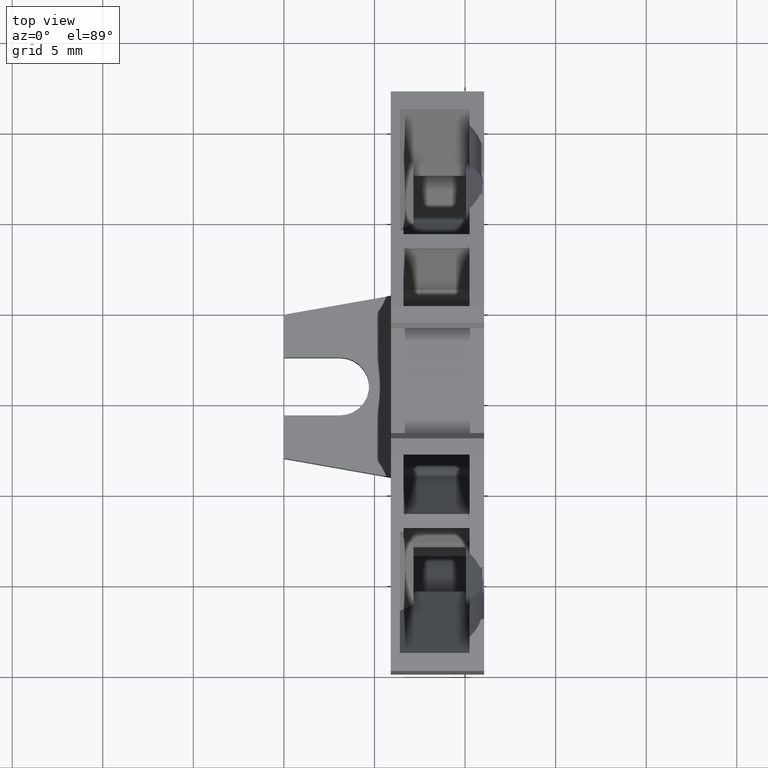
[diagram: clean part render]
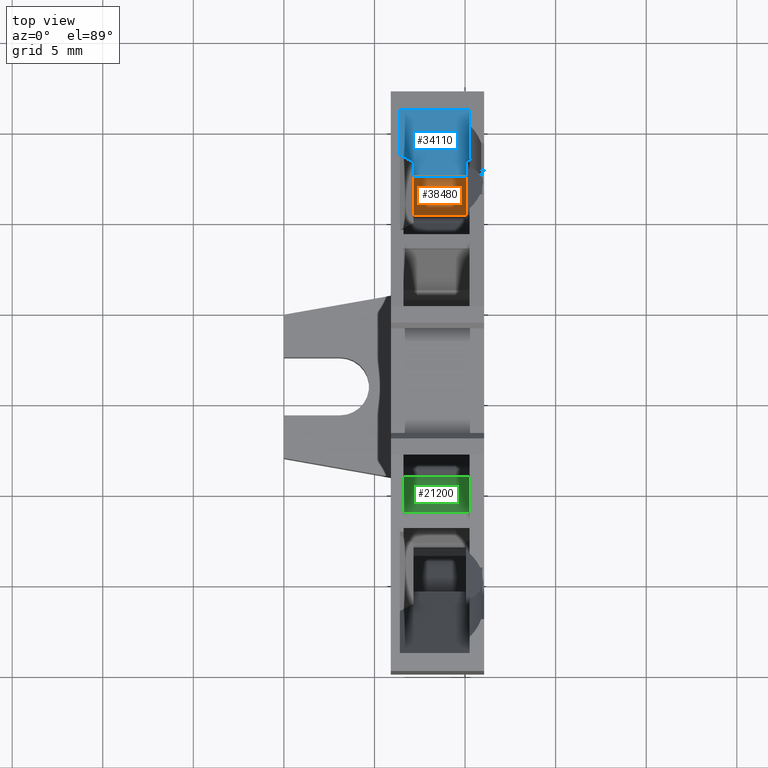
[diagram: same view with three faces highlighted in distinct colors, each labeled with its STEP entity id]
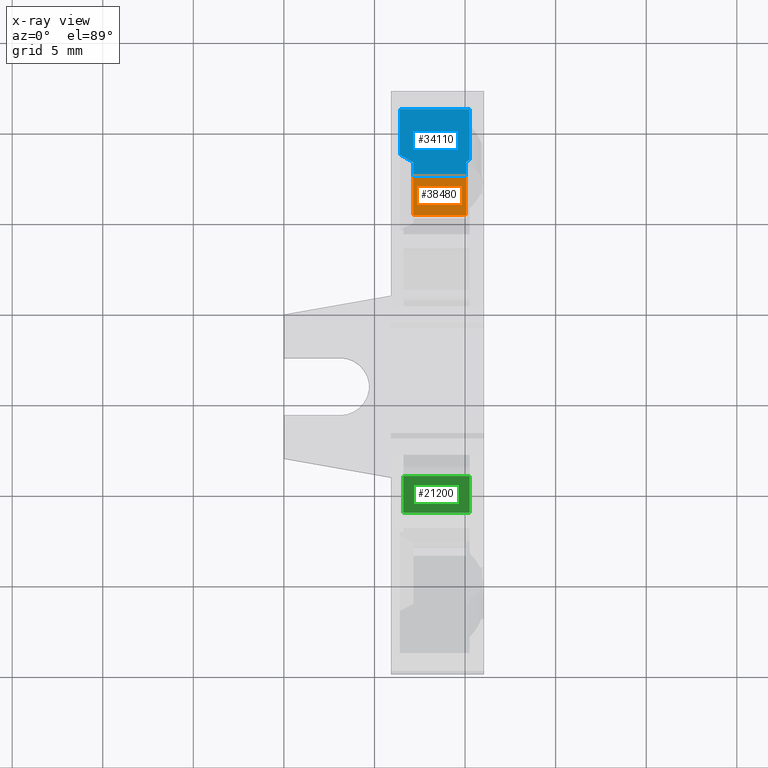
[diagram: x-ray of the same camera — body ghosted, the three highlighted faces saturated]
A machine part, top view with three faces highlighted in distinct colors.
The next image is the same camera in x-ray (body ghosted, the three faces saturated) — at least one of them is partly hidden behind the body in this view.
Their STEP definitions:

[orange] entity #38480 — the highlighted planar face has unit normal (0, -0.9063, 0.4226).
#37240=CARTESIAN_POINT('',(4.92265958745809,102.561787937568,
58.9500000000001));
#37250=VERTEX_POINT('',#37240);
#37280=CARTESIAN_POINT('',(20.0392281187325,115.246095016827,
58.9500000000002));
#37290=DIRECTION('',(-0.766044443118981,-0.642787609686536,
-5.66151225185954E-15));
#37300=VECTOR('',#37290,1.);
#37310=LINE('',#37280,#37300);
#37320=CARTESIAN_POINT('',(8.6707968779077,105.706848555586,
58.9500000000001));
#37330=VERTEX_POINT('',#37320);
#37340=EDGE_CURVE('',#37330,#37250,#37310,.T.);
#37970=CARTESIAN_POINT('',(8.67079687790773,105.706848555586,
56.0500000000001));
#37980=VERTEX_POINT('',#37970);
#38010=CARTESIAN_POINT('',(20.0392281187325,115.246095016827,
56.0500000000001));
#38020=DIRECTION('',(0.766044443118981,0.642787609686536,
5.66151225185954E-15));
#38030=VECTOR('',#38020,1.);
#38040=LINE('',#38010,#38030);
#38050=CARTESIAN_POINT('',(4.92265958745811,102.561787937568,56.05));
#38060=VERTEX_POINT('',#38050);
#38070=EDGE_CURVE('',#38060,#37980,#38040,.T.);
#38270=CARTESIAN_POINT('',(4.92265958745811,102.561787937568,56.05));
#38280=DIRECTION('',(-0.642787609686536,0.766044443118981,
-7.14358070359978E-15));
#38290=DIRECTION('',(-0.766044443118981,-0.642787609686536,
-5.63489273998844E-15));
#38300=AXIS2_PLACEMENT_3D('',#38270,#38280,#38290);
#38310=PLANE('',#38300);
#38320=CARTESIAN_POINT('',(8.67079687790769,105.706848555586,60.2));
#38330=DIRECTION('',(8.93727734127014E-15,-1.82601620162375E-15,-1.));
#38340=VECTOR('',#38330,1.);
#38350=LINE('',#38320,#38340);
#38360=EDGE_CURVE('',#37330,#37980,#38350,.T.);
#38370=ORIENTED_EDGE('',*,*,#38360,.T.);
#38380=ORIENTED_EDGE('',*,*,#37340,.F.);
#38390=CARTESIAN_POINT('',(4.92265958745811,102.561787937568,56.05));
#38400=DIRECTION('',(-8.9083834361094E-15,1.8502610667874E-15,1.));
#38410=VECTOR('',#38400,1.);
#38420=LINE('',#38390,#38410);
#38430=EDGE_CURVE('',#38060,#37250,#38420,.T.);
#38440=ORIENTED_EDGE('',*,*,#38430,.T.);
#38450=ORIENTED_EDGE('',*,*,#38070,.F.);
#38460=EDGE_LOOP('',(#38450,#38440,#38380,#38370));
#38470=FACE_OUTER_BOUND('',#38460,.T.);
#38480=ADVANCED_FACE('',(#38470),#38310,.T.);

[blue] entity #34110 — the highlighted planar face has unit normal (-0, 0.915, -0.4035).
#8500=CARTESIAN_POINT('',(-3.3303098592718,96.6881090813056,55.85));
#8510=VERTEX_POINT('',#8500);
#8540=CARTESIAN_POINT('',(-3.33030985927203,96.6881090813065,
1.19999999999999));
#8550=DIRECTION('',(-5.72931237573775E-15,4.40896777512382E-15,1.));
#8560=VECTOR('',#8550,1.);
#8570=LINE('',#8540,#8560);
#8580=CARTESIAN_POINT('',(-3.33030985927237,96.6881090813068,59.7));
#8590=VERTEX_POINT('',#8580);
#8600=EDGE_CURVE('',#8510,#8590,#8570,.T.);
#32500=CARTESIAN_POINT('',(1.80570796930594,100.817573436234,55.85));
#32510=VERTEX_POINT('',#32500);
#32540=CARTESIAN_POINT('',(30.7687890493702,124.104488497847,
55.8500000000003));
#32550=DIRECTION('',(-0.779337964931072,-0.62660381136496,
-5.80585337056626E-15));
#32560=VECTOR('',#32550,1.);
#32570=LINE('',#32540,#32560);
#32580=EDGE_CURVE('',#32510,#8510,#32570,.T.);
#33560=CARTESIAN_POINT('',(3.52774540917731,102.202127085212,59.5));
#33570=DIRECTION('',(0.626603811364457,-0.779337964931477,
7.02608494444828E-15));
#33580=DIRECTION('',(0.779337964931478,0.626603811364458,
5.8197053782752E-15));
#33590=AXIS2_PLACEMENT_3D('',#33560,#33570,#33580);
#33600=PLANE('',#33590);
#33610=CARTESIAN_POINT('',(19.9881696181566,115.436647935134,
56.0500000000001));
#33620=DIRECTION('',(0.779337964931477,0.626603811364457,
5.8246950053832E-15));
#33630=VECTOR('',#33620,1.);
#33640=LINE('',#33610,#33630);
#33650=CARTESIAN_POINT('',(2.12670908359392,101.075664958413,56.05));
#33660=VERTEX_POINT('',#33650);
#33670=CARTESIAN_POINT('',(3.50143310468914,102.180971449249,56.05));
#33680=VERTEX_POINT('',#33670);
#33690=EDGE_CURVE('',#33660,#33680,#33640,.T.);
#33700=ORIENTED_EDGE('',*,*,#33690,.F.);
#33710=CARTESIAN_POINT('',(3.50143310468914,102.180971449249,56.05));
#33720=DIRECTION('',(-8.9083834361094E-15,1.8502610667874E-15,1.));
#33730=VECTOR('',#33720,1.);
#33740=LINE('',#33710,#33730);
#33750=CARTESIAN_POINT('',(3.50143310468912,102.180971449249,58.95));
#33760=VERTEX_POINT('',#33750);
#33770=EDGE_CURVE('',#33680,#33760,#33740,.T.);
#33780=ORIENTED_EDGE('',*,*,#33770,.F.);
#33790=CARTESIAN_POINT('',(19.9881696181565,115.436647935134,
58.9500000000002));
#33800=DIRECTION('',(-0.779337964931477,-0.626603811364457,
-5.8246950053832E-15));
#33810=VECTOR('',#33800,1.);
#33820=LINE('',#33790,#33810);
#33830=CARTESIAN_POINT('',(2.12670908359203,101.075664958417,58.95));
#33840=VERTEX_POINT('',#33830);
#33850=EDGE_CURVE('',#33760,#33840,#33820,.T.);
#33860=ORIENTED_EDGE('',*,*,#33850,.F.);
#33870=CARTESIAN_POINT('',(29.6880590390013,123.235559260435,
33.1918184279166));
#33880=DIRECTION('',(-0.629955555217545,-0.506497270314236,
0.588741465853037));
#33890=VECTOR('',#33880,1.);
#33900=LINE('',#33870,#33890);
#33910=CARTESIAN_POINT('',(1.32420629787684,100.430436152959,59.7));
#33920=VERTEX_POINT('',#33910);
#33930=EDGE_CURVE('',#33840,#33920,#33900,.T.);
#33940=ORIENTED_EDGE('',*,*,#33930,.F.);
#33950=CARTESIAN_POINT('',(19.9881696181497,115.436647935152,59.7));
#33960=DIRECTION('',(-0.779337964931072,-0.626603811364961,
-1.9805735627175E-15));
#33970=VECTOR('',#33960,1.);
#33980=LINE('',#33950,#33970);
#33990=EDGE_CURVE('',#33920,#8590,#33980,.T.);
#34000=ORIENTED_EDGE('',*,*,#33990,.F.);
#34010=ORIENTED_EDGE('',*,*,#8600,.T.);
#34020=ORIENTED_EDGE('',*,*,#32580,.T.);
#34030=CARTESIAN_POINT('',(30.7687890493701,124.104488497848,
73.8954707420419));
#34040=DIRECTION('',(0.701061393815292,0.56366783235608,0.43679685995753
));
#34050=VECTOR('',#34040,1.);
#34060=LINE('',#34030,#34050);
#34070=EDGE_CURVE('',#32510,#33660,#34060,.T.);
#34080=ORIENTED_EDGE('',*,*,#34070,.F.);
#34090=EDGE_LOOP('',(#34080,#34020,#34010,#34000,#33940,#33860,#33780,
#33700));
#34100=FACE_OUTER_BOUND('',#34090,.T.);
#34110=ADVANCED_FACE('',(#34100),#33600,.F.);

[green] entity #21200 — the highlighted planar face has unit normal (0, -0.9418, -0.3361).
#12440=CARTESIAN_POINT('',(-8.77592645662877,118.285303567392,
55.8499999999999));
#12450=VERTEX_POINT('',#12440);
#12480=CARTESIAN_POINT('',(1.35003119794419E-13,117.573422095556,
55.8499999999999));
#12490=DIRECTION('',(-0.996726121110374,0.0808519603736914,
-5.20006836608108E-15));
#12500=VECTOR('',#12490,1.);
#12510=LINE('',#12480,#12500);
#12520=CARTESIAN_POINT('',(-2.47752193997825,117.774392554214,55.85));
#12530=VERTEX_POINT('',#12520);
#12540=EDGE_CURVE('',#12530,#12450,#12510,.T.);
#18950=CARTESIAN_POINT('',(-8.77592645662885,118.285303567392,
59.4999999999998));
#18960=VERTEX_POINT('',#18950);
#19590=CARTESIAN_POINT('',(-2.47752193997828,117.774392554214,
59.4999999999998));
#19600=VERTEX_POINT('',#19590);
#19630=CARTESIAN_POINT('',(1.17239551400417E-13,117.573422095556,
59.4999999999998));
#19640=DIRECTION('',(0.996726121110374,-0.0808519603736914,
5.20006836608108E-15));
#19650=VECTOR('',#19640,1.);
#19660=LINE('',#19630,#19650);
#19670=EDGE_CURVE('',#18960,#19600,#19660,.T.);
#20860=CARTESIAN_POINT('',(-2.47752193997788,117.774392554214,
-1.68087765928249E-13));
#20870=DIRECTION('',(4.98526388124856E-15,-2.8840892914068E-15,-1.));
#20880=VECTOR('',#20870,1.);
#20890=LINE('',#20860,#20880);
#20900=EDGE_CURVE('',#19600,#12530,#20890,.T.);
#21040=CARTESIAN_POINT('',(-3.08411877790571,117.823598191012,
59.4999999999998));
#21050=DIRECTION('',(0.0808519603736914,0.996726121110374,
-2.47157877458076E-15));
#21060=DIRECTION('',(-0.996726121110374,0.0808519603736914,
-5.21394615388889E-15));
#21070=AXIS2_PLACEMENT_3D('',#21040,#21050,#21060);
#21080=PLANE('',#21070);
#21090=ORIENTED_EDGE('',*,*,#19670,.F.);
#21100=ORIENTED_EDGE('',*,*,#20900,.F.);
#21110=ORIENTED_EDGE('',*,*,#12540,.F.);
#21120=CARTESIAN_POINT('',(-8.77592645662855,118.285303567392,
-2.00950367457153E-13));
#21130=DIRECTION('',(-4.99704433650116E-15,2.8850448928314E-15,1.));
#21140=VECTOR('',#21130,1.);
#21150=LINE('',#21120,#21140);
#21160=EDGE_CURVE('',#12450,#18960,#21150,.T.);
#21170=ORIENTED_EDGE('',*,*,#21160,.F.);
#21180=EDGE_LOOP('',(#21170,#21110,#21100,#21090));
#21190=FACE_OUTER_BOUND('',#21180,.T.);
#21200=ADVANCED_FACE('',(#21190),#21080,.F.);